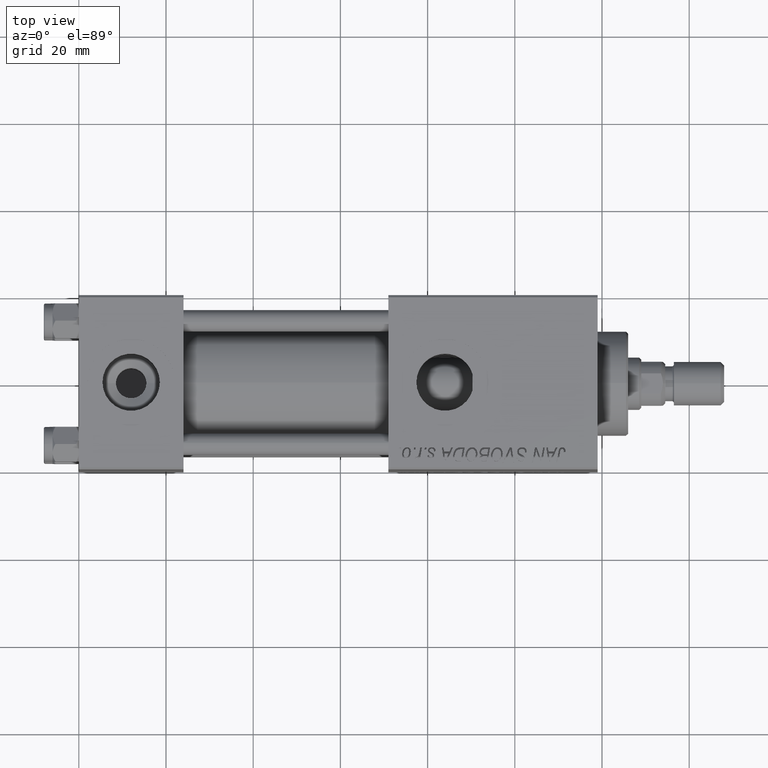
[diagram: clean part render]
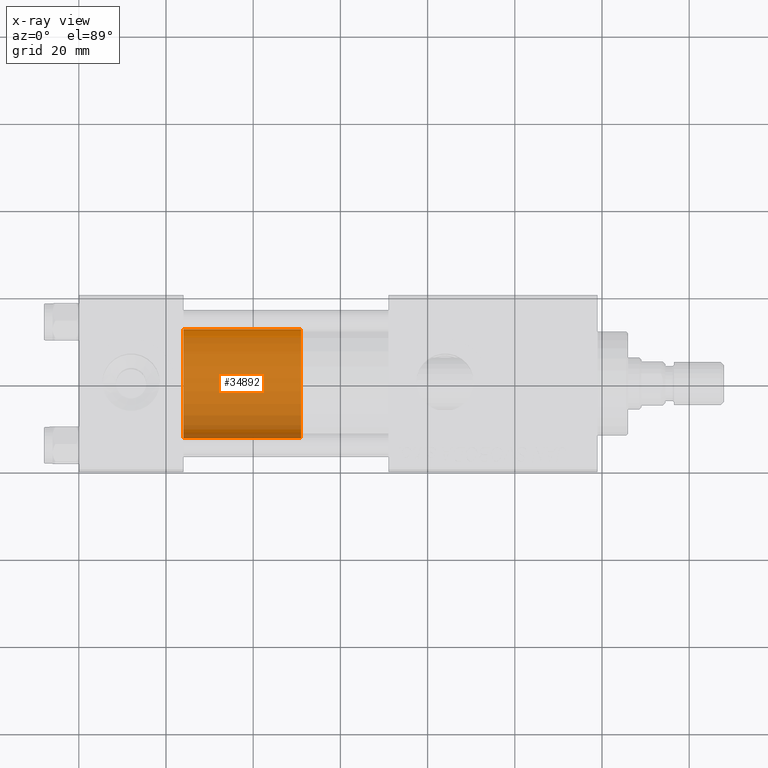
[diagram: x-ray — body ghosted, one internal face saturated and labeled with its STEP entity id]
A machine part, top view, then the same camera in x-ray: the body is ghosted and one INTERNAL B-rep face — a face not visible from any outside direction — is saturated and labeled: STEP entity #34892.
In plain terms, the highlighted cylindrical surface (partial cylindrical patch) has radius 12.5 mm, axis along (-1, 0, 0).
Its self-contained STEP definition (entity closure, byte-faithful):
#365 = DIRECTION ( 'NONE',  ( -1.000000000000000000, 0.000000000000000000, 0.000000000000000000 ) ) ;
#1012 = CARTESIAN_POINT ( 'NONE',  ( -12.50000000000000000, 0.000000000000000000, 0.000000000000000000 ) ) ;
#1147 = CYLINDRICAL_SURFACE ( 'NONE', #1205, 12.50000000000000000 ) ;
#1163 = EDGE_LOOP ( 'NONE', ( #8141, #35992, #23775, #13404 ) ) ;
#1205 = AXIS2_PLACEMENT_3D ( 'NONE', #32558, #44799, #365 ) ;
#1650 = VERTEX_POINT ( 'NONE', #10289 ) ;
#3305 = CARTESIAN_POINT ( 'NONE',  ( 12.50000000000000000, 1.530808498934191521E-15, 0.000000000000000000 ) ) ;
#7076 = EDGE_CURVE ( 'NONE', #26334, #10013, #27641, .T. ) ;
#8141 = ORIENTED_EDGE ( 'NONE', *, *, #23326, .F. ) ;
#10013 = VERTEX_POINT ( 'NONE', #1012 ) ;
#10289 = CARTESIAN_POINT ( 'NONE',  ( -12.50000000000000000, 0.000000000000000000, 27.00000000000000000 ) ) ;
#10427 = CARTESIAN_POINT ( 'NONE',  ( 0.000000000000000000, 0.000000000000000000, 0.000000000000000000 ) ) ;
#11952 = AXIS2_PLACEMENT_3D ( 'NONE', #28318, #32059, #28583 ) ;
#13260 = CARTESIAN_POINT ( 'NONE',  ( -12.50000000000000000, 0.000000000000000000, 27.00000000000000000 ) ) ;
#13404 = ORIENTED_EDGE ( 'NONE', *, *, #30215, .F. ) ;
#18394 = DIRECTION ( 'NONE',  ( 1.000000000000000000, 0.000000000000000000, 0.000000000000000000 ) ) ;
#23326 = EDGE_CURVE ( 'NONE', #34239, #1650, #34910, .T. ) ;
#23775 = ORIENTED_EDGE ( 'NONE', *, *, #7076, .T. ) ;
#25656 = CARTESIAN_POINT ( 'NONE',  ( 12.50000000000000000, 1.530808498934191521E-15, 27.00000000000000000 ) ) ;
#25932 = LINE ( 'NONE', #25656, #31513 ) ;
#26334 = VERTEX_POINT ( 'NONE', #3305 ) ;
#27641 = CIRCLE ( 'NONE', #46392, 12.50000000000000000 ) ;
#28318 = CARTESIAN_POINT ( 'NONE',  ( 0.000000000000000000, 0.000000000000000000, 27.00000000000000000 ) ) ;
#28555 = FACE_OUTER_BOUND ( 'NONE', #1163, .T. ) ;
#28583 = DIRECTION ( 'NONE',  ( 1.000000000000000000, 0.000000000000000000, 0.000000000000000000 ) ) ;
#30215 = EDGE_CURVE ( 'NONE', #1650, #10013, #33743, .T. ) ;
#31513 = VECTOR ( 'NONE', #46427, 1000.000000000000000 ) ;
#32059 = DIRECTION ( 'NONE',  ( 0.000000000000000000, 0.000000000000000000, 1.000000000000000000 ) ) ;
#32558 = CARTESIAN_POINT ( 'NONE',  ( 0.000000000000000000, 0.000000000000000000, 27.00000000000000000 ) ) ;
#33743 = LINE ( 'NONE', #13260, #42656 ) ;
#34239 = VERTEX_POINT ( 'NONE', #51509 ) ;
#34892 = ADVANCED_FACE ( 'NONE', ( #28555 ), #1147, .T. ) ;
#34910 = CIRCLE ( 'NONE', #11952, 12.50000000000000000 ) ;
#35992 = ORIENTED_EDGE ( 'NONE', *, *, #39035, .T. ) ;
#39035 = EDGE_CURVE ( 'NONE', #34239, #26334, #25932, .T. ) ;
#42515 = DIRECTION ( 'NONE',  ( -0.000000000000000000, -0.000000000000000000, -1.000000000000000000 ) ) ;
#42656 = VECTOR ( 'NONE', #42515, 1000.000000000000000 ) ;
#44799 = DIRECTION ( 'NONE',  ( -0.000000000000000000, -0.000000000000000000, -1.000000000000000000 ) ) ;
#46392 = AXIS2_PLACEMENT_3D ( 'NONE', #10427, #51129, #18394 ) ;
#46427 = DIRECTION ( 'NONE',  ( -0.000000000000000000, -0.000000000000000000, -1.000000000000000000 ) ) ;
#51129 = DIRECTION ( 'NONE',  ( 0.000000000000000000, 0.000000000000000000, 1.000000000000000000 ) ) ;
#51509 = CARTESIAN_POINT ( 'NONE',  ( 12.50000000000000000, 1.530808498934191521E-15, 27.00000000000000000 ) ) ;